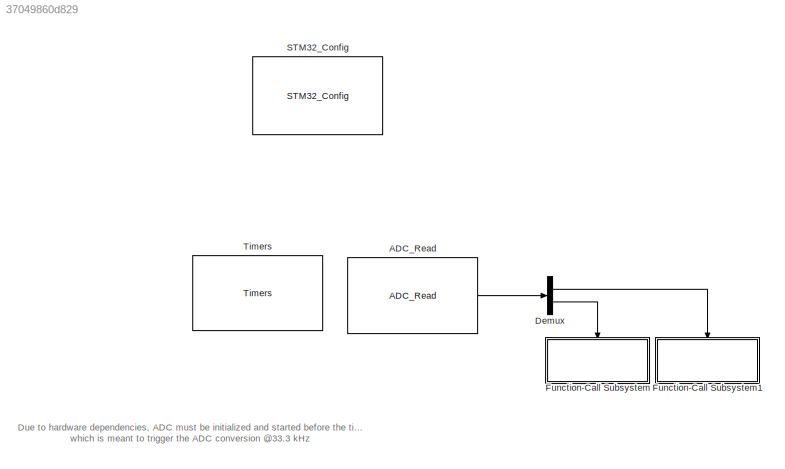
MODEL slx_37049860d829
KIND model
CONFIG AbsTol = auto
CONFIG EnableMultiTasking = off
CONFIG FixedStep = 0.001
CONFIG MaxStep = auto
CONFIG MinStep = auto
CONFIG RelTol = 1e-3
CONFIG SampleTimeConstraint = Unconstrained
CONFIG Solver = FixedStepDiscrete
CONFIG SolverName = FixedStepDiscrete
CONFIG StartTime = 0.0
CONFIG StopTime = 10.0
BLOCK [Reference] ADC_Read  REF=ADC_Lib/ADC_Read
  AttributesFormatString = Priority=%<Priority>
  Ports = [0, 1]
  Priority = 1
  SourceBlock = ADC_Lib/ADC_Read
  SourceProductName = Target Support Package - STM32 Adapter
  SourceType = ADC_Read
BLOCK [Demux] Demux
  DisplayOption = bar
  Outputs = 2
  Ports = [1, 2]
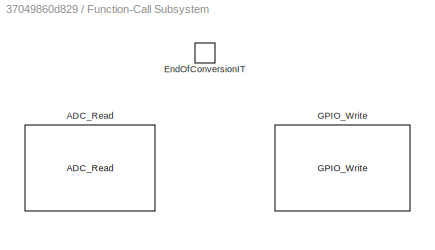
BLOCK [SubSystem] Function-Call Subsystem
  Ports = [0, 0, 0, 1]
  RequestExecContextInheritance = off
  TreatAsAtomicUnit = on
BLOCK [Reference] Function-Call Subsystem/ADC_Read  REF=ADC_Lib/ADC_Read
  Ports = [0, 1]
  SourceBlock = ADC_Lib/ADC_Read
  SourceProductName = Target Support Package - STM32 Adapter
  SourceType = ADC_Read
BLOCK [TriggerPort] Function-Call Subsystem/EndOfConversionIT
  Ports = []
  StatesWhenEnabling = held
  TriggerType = function-call
  VariantControl = Variant
BLOCK [Reference] Function-Call Subsystem/GPIO_Write  REF=GPIO_Lib/GPIO_Write
  Ports = [1]
  SourceBlock = GPIO_Lib/GPIO_Write
  SourceProductName = Target Support Package - STM32 Adapter
  SourceType = GPIO_Write
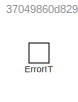
BLOCK [SubSystem] Function-Call Subsystem1
  Ports = [0, 0, 0, 1]
  RequestExecContextInheritance = off
  TreatAsAtomicUnit = on
BLOCK [TriggerPort] Function-Call Subsystem1/ErrorIT
  Ports = []
  StatesWhenEnabling = held
  TriggerType = function-call
  VariantControl = Variant
BLOCK [Reference] STM32_Config  REF=STM32_Config_Lib/STM32_Config
  Ports = []
  Priority = 0
  SourceBlock = STM32_Config_Lib/STM32_Config
  SourceProductName = Target Support Package - STM32 Adapter
  SourceType = STM32_Config
BLOCK [Reference] Timers  REF=TIMERS_Lib/Timers
  AttributesFormatString = Priority=%<Priority>\nOutput_frequency=%<Output_frequency>
  Ports = []
  Priority = 2
  SourceBlock = TIMERS_Lib/Timers
  SourceProductName = Target Support Package - STM32 Adapter
  SourceType = Timers
ANNOTATION (root): Due to hardware dependencies, ADC must be initialized and started before the timer, which is meant to trigger the ADC conversion @33.3 kHz
LINE ADC_Read:1 -> Demux:1
LINE Demux:1 -> Function-Call Subsystem1:trigger
LINE Demux:2 -> Function-Call Subsystem:trigger
